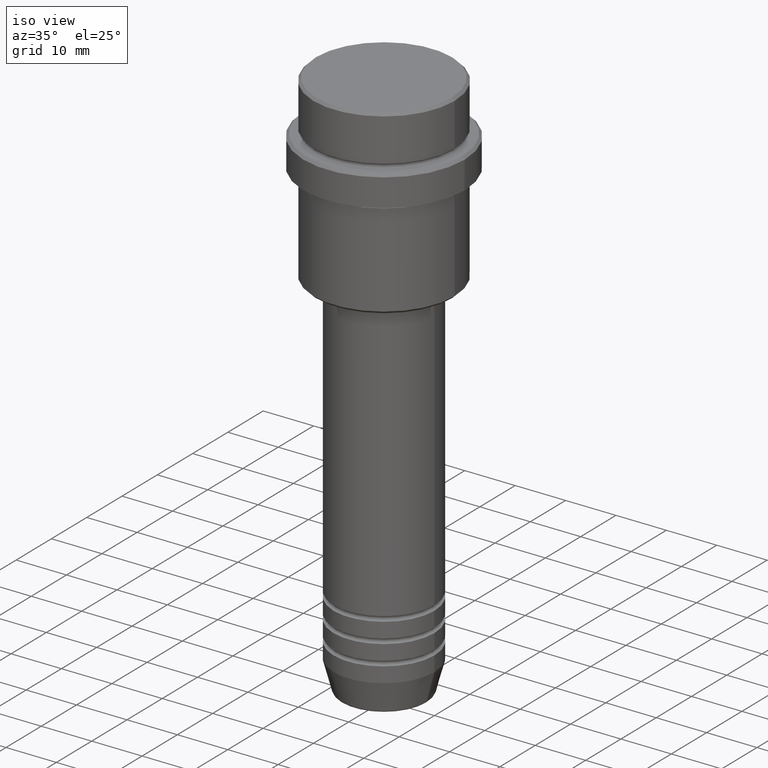
[diagram: clean part render]
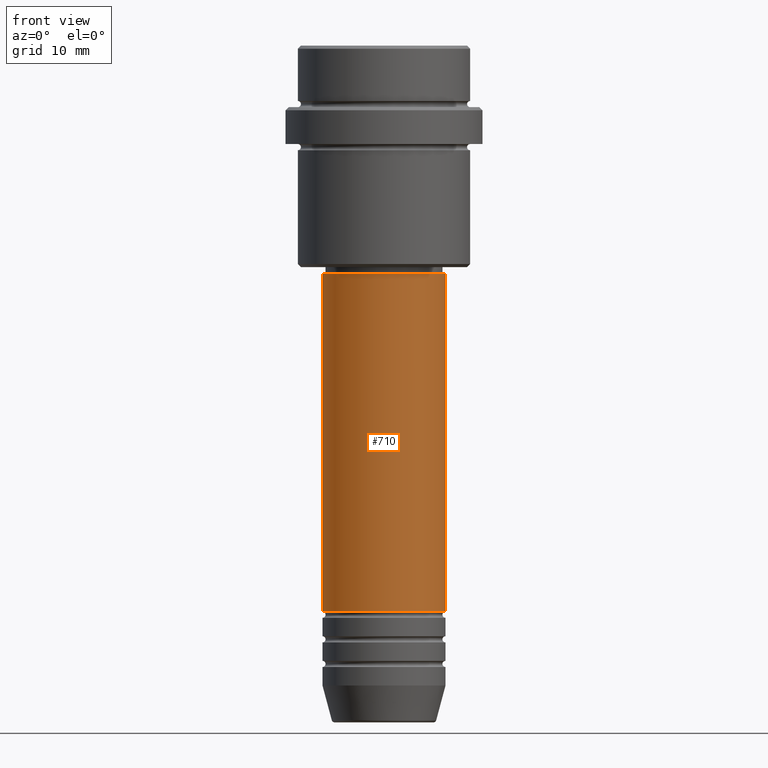
[diagram: tour spotlight — one face highlighted and labeled with its STEP entity id]
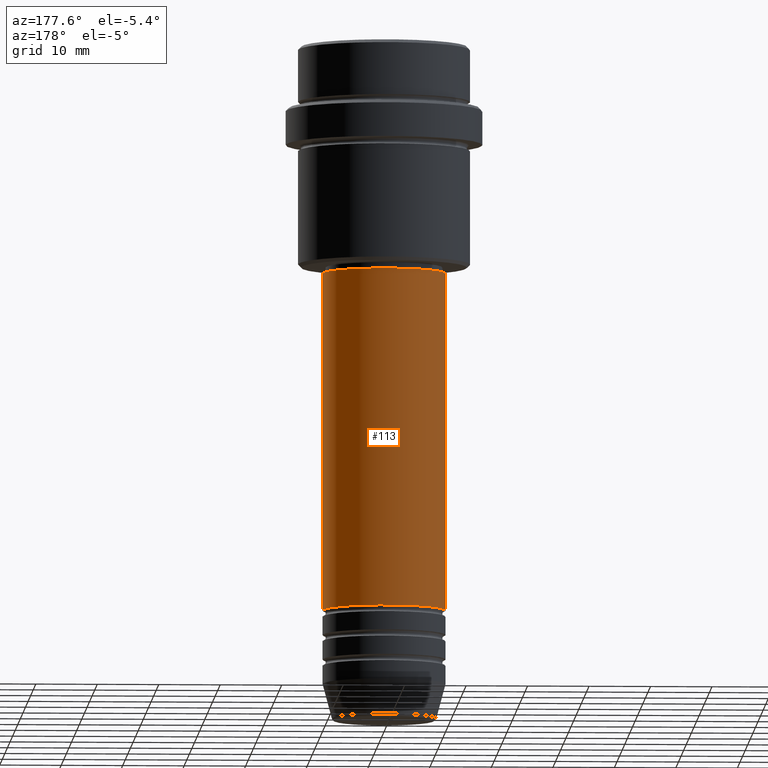
[diagram: tour spotlight — one face highlighted and labeled with its STEP entity id]
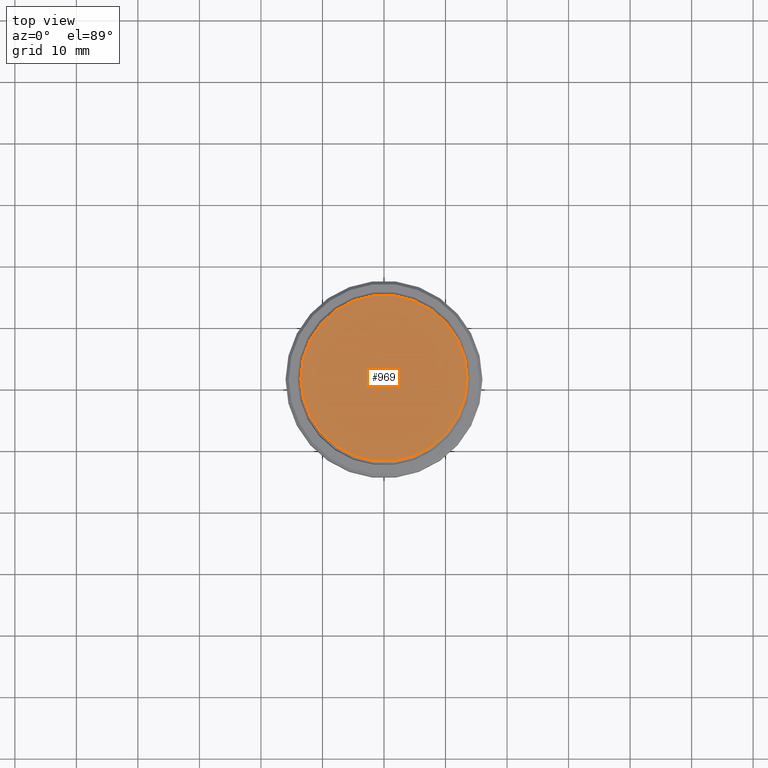
[diagram: tour spotlight — one face highlighted and labeled with its STEP entity id]
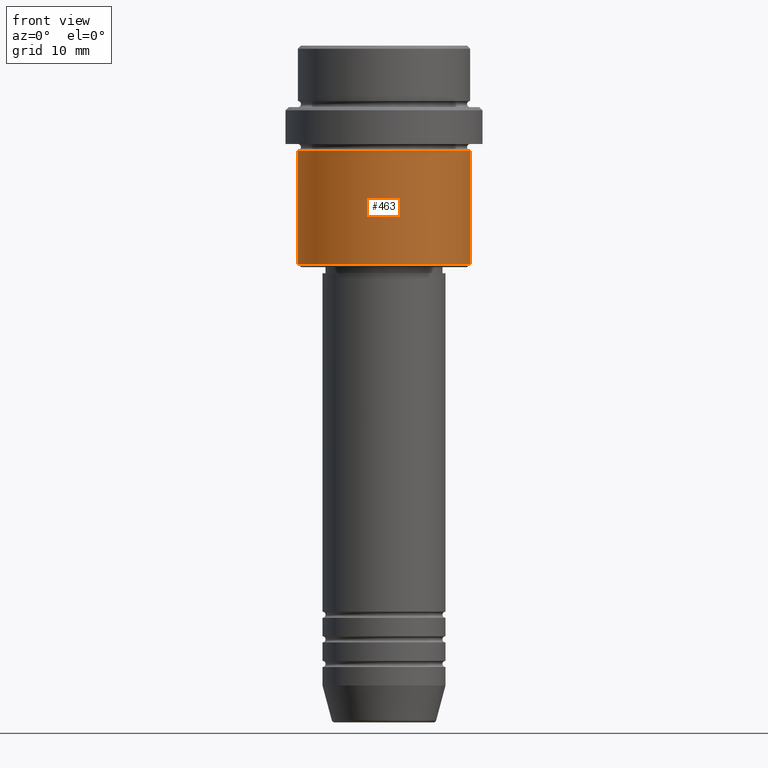
[diagram: tour spotlight — one face highlighted and labeled with its STEP entity id]
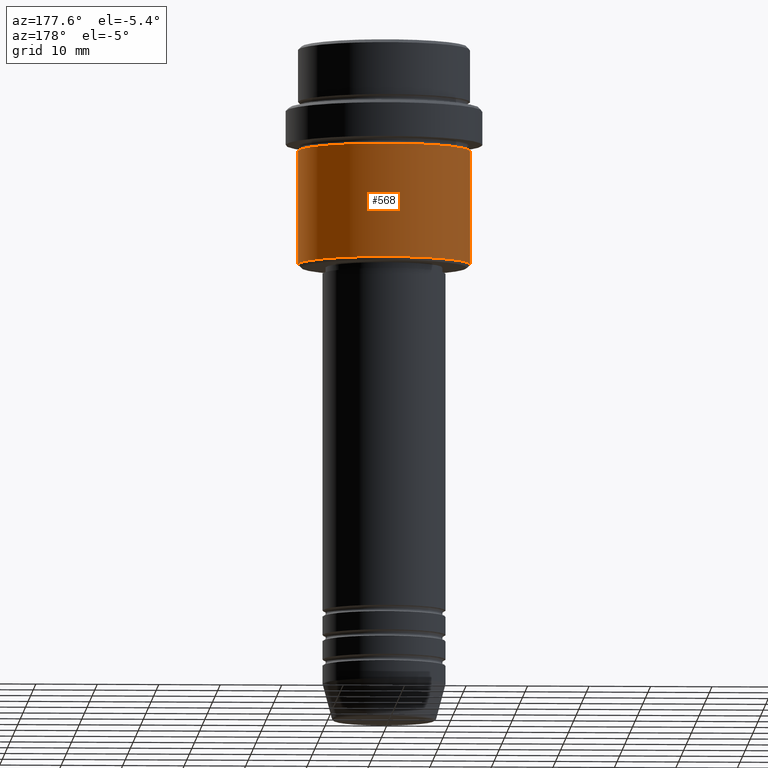
[diagram: tour spotlight — one face highlighted and labeled with its STEP entity id]
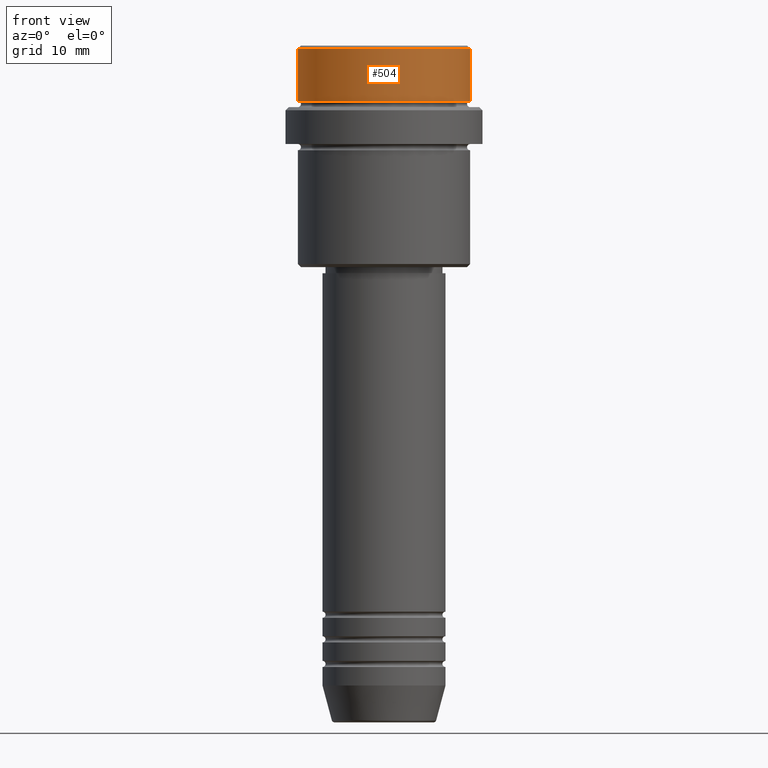
[diagram: tour spotlight — one face highlighted and labeled with its STEP entity id]
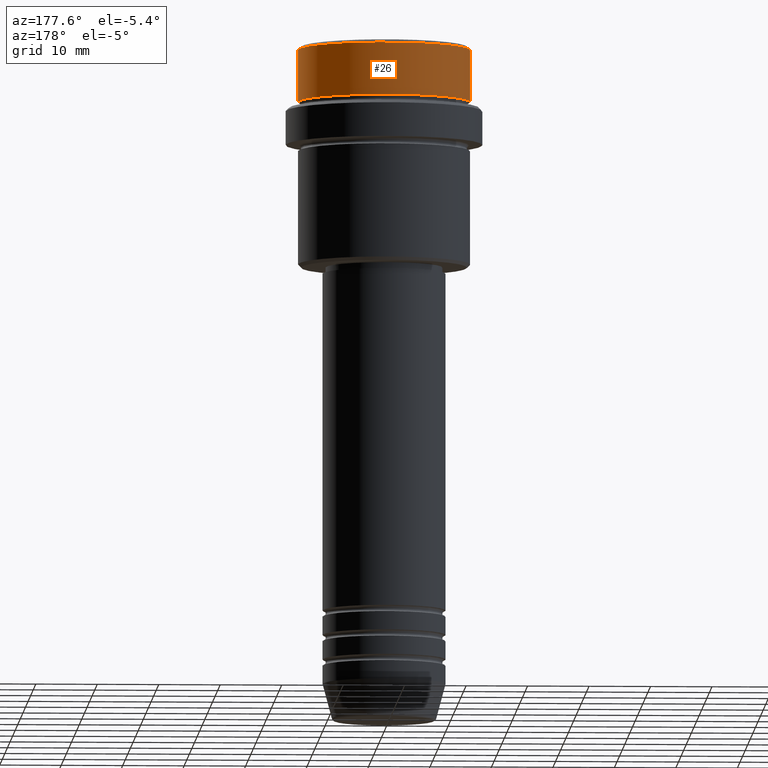
[diagram: tour spotlight — one face highlighted and labeled with its STEP entity id]
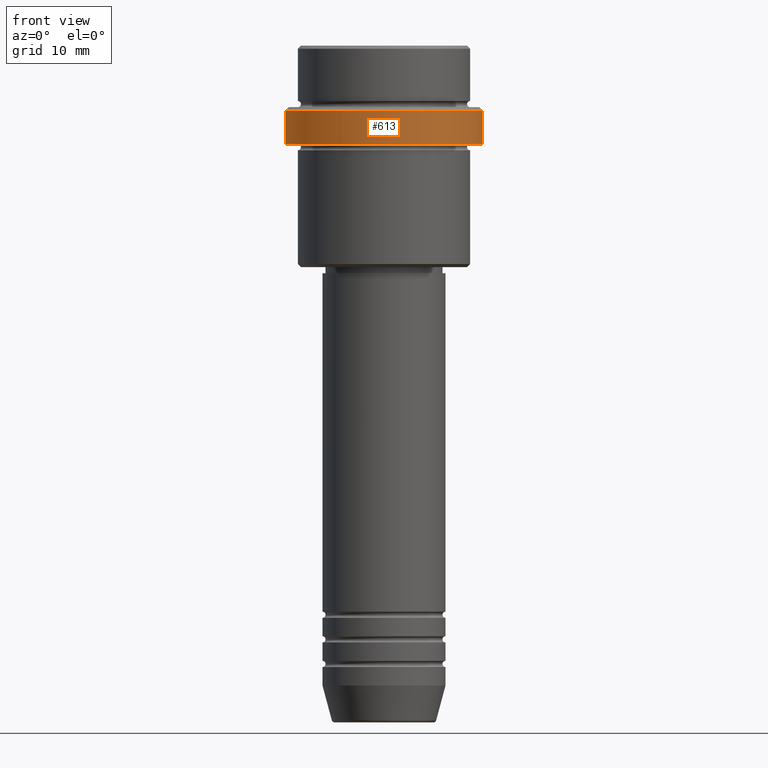
[diagram: tour spotlight — one face highlighted and labeled with its STEP entity id]
A machine part: a face-by-face anatomy tour. The part has 52 B-rep faces; the first image is the clean iso view, then the 8 largest visible faces are spotlighted one at a time (largest first), each with its STEP entity span.

Face 1 — front view, entity #710. In plain terms, the highlighted cylindrical surface (partial cylindrical patch) has radius 10 mm, axis along (-0, -0, 1).
Definition (entity closure, byte-faithful):
#45 = DIRECTION ( 'NONE',  ( 1.000000000000000000, 0.000000000000000000, 0.000000000000000000 ) ) ;
#54 = AXIS2_PLACEMENT_3D ( 'NONE', #1031, #467, #384 ) ;
#58 = VECTOR ( 'NONE', #427, 1000.000000000000000 ) ;
#231 = EDGE_LOOP ( 'NONE', ( #849, #626, #643, #864 ) ) ;
#296 = AXIS2_PLACEMENT_3D ( 'NONE', #1258, #500, #397 ) ;
#353 = DIRECTION ( 'NONE',  ( -0.000000000000000000, -0.000000000000000000, 1.000000000000000000 ) ) ;
#384 = DIRECTION ( 'NONE',  ( 1.000000000000000000, 0.000000000000000000, 0.000000000000000000 ) ) ;
#397 = DIRECTION ( 'NONE',  ( 1.000000000000000000, 0.000000000000000000, 0.000000000000000000 ) ) ;
#416 = EDGE_CURVE ( 'NONE', #798, #551, #471, .T. ) ;
#418 = CARTESIAN_POINT ( 'NONE',  ( -10.00000000000000000, 1.224646799147353256E-15, -91.99999999999988631 ) ) ;
#422 = CARTESIAN_POINT ( 'NONE',  ( 10.00000000000000000, 0.000000000000000000, -91.99999999999988631 ) ) ;
#427 = DIRECTION ( 'NONE',  ( -0.000000000000000000, -0.000000000000000000, 1.000000000000000000 ) ) ;
#446 = EDGE_CURVE ( 'NONE', #755, #678, #890, .T. ) ;
#467 = DIRECTION ( 'NONE',  ( -0.000000000000000000, -0.000000000000000000, 1.000000000000000000 ) ) ;
#471 = CIRCLE ( 'NONE', #54, 10.00000000000000000 ) ;
#500 = DIRECTION ( 'NONE',  ( -0.000000000000000000, -0.000000000000000000, 1.000000000000000000 ) ) ;
#519 = CYLINDRICAL_SURFACE ( 'NONE', #296, 10.00000000000000178 ) ;
#551 = VERTEX_POINT ( 'NONE', #422 ) ;
#553 = CARTESIAN_POINT ( 'NONE',  ( -10.00000000000000178, 1.224646799147353454E-15, -37.00000000000000000 ) ) ;
#626 = ORIENTED_EDGE ( 'NONE', *, *, #416, .T. ) ;
#643 = ORIENTED_EDGE ( 'NONE', *, *, #1125, .T. ) ;
#672 = CARTESIAN_POINT ( 'NONE',  ( -10.00000000000000178, 1.224646799147353454E-15, 0.000000000000000000 ) ) ;
#678 = VERTEX_POINT ( 'NONE', #1146 ) ;
#710 = ADVANCED_FACE ( 'NONE', ( #825 ), #519, .T. ) ;
#755 = VERTEX_POINT ( 'NONE', #553 ) ;
#798 = VERTEX_POINT ( 'NONE', #418 ) ;
#825 = FACE_OUTER_BOUND ( 'NONE', #231, .T. ) ;
#836 = AXIS2_PLACEMENT_3D ( 'NONE', #1036, #1130, #45 ) ;
#849 = ORIENTED_EDGE ( 'NONE', *, *, #1310, .F. ) ;
#864 = ORIENTED_EDGE ( 'NONE', *, *, #446, .F. ) ;
#890 = CIRCLE ( 'NONE', #836, 10.00000000000000178 ) ;
#897 = LINE ( 'NONE', #1322, #1188 ) ;
#1031 = CARTESIAN_POINT ( 'NONE',  ( 0.000000000000000000, 0.000000000000000000, -91.99999999999988631 ) ) ;
#1036 = CARTESIAN_POINT ( 'NONE',  ( 0.000000000000000000, 0.000000000000000000, -37.00000000000000000 ) ) ;
#1125 = EDGE_CURVE ( 'NONE', #551, #678, #897, .T. ) ;
#1130 = DIRECTION ( 'NONE',  ( -0.000000000000000000, -0.000000000000000000, 1.000000000000000000 ) ) ;
#1146 = CARTESIAN_POINT ( 'NONE',  ( 10.00000000000000178, 0.000000000000000000, -37.00000000000000000 ) ) ;
#1188 = VECTOR ( 'NONE', #353, 1000.000000000000000 ) ;
#1258 = CARTESIAN_POINT ( 'NONE',  ( 0.000000000000000000, 0.000000000000000000, 0.000000000000000000 ) ) ;
#1310 = EDGE_CURVE ( 'NONE', #798, #755, #1400, .T. ) ;
#1322 = CARTESIAN_POINT ( 'NONE',  ( 10.00000000000000178, 0.000000000000000000, 0.000000000000000000 ) ) ;
#1400 = LINE ( 'NONE', #672, #58 ) ;

Face 2 — auxiliary view, entity #113. In plain terms, the highlighted cylindrical surface (partial cylindrical patch) has radius 10 mm, axis along (-0, -0, 1).
Definition (entity closure, byte-faithful):
#58 = VECTOR ( 'NONE', #427, 1000.000000000000000 ) ;
#113 = ADVANCED_FACE ( 'NONE', ( #800 ), #1325, .T. ) ;
#118 = DIRECTION ( 'NONE',  ( 1.000000000000000000, 0.000000000000000000, 0.000000000000000000 ) ) ;
#142 = AXIS2_PLACEMENT_3D ( 'NONE', #445, #1014, #118 ) ;
#165 = DIRECTION ( 'NONE',  ( 1.000000000000000000, 0.000000000000000000, 0.000000000000000000 ) ) ;
#203 = ORIENTED_EDGE ( 'NONE', *, *, #1310, .T. ) ;
#220 = EDGE_CURVE ( 'NONE', #678, #755, #1041, .T. ) ;
#353 = DIRECTION ( 'NONE',  ( -0.000000000000000000, -0.000000000000000000, 1.000000000000000000 ) ) ;
#418 = CARTESIAN_POINT ( 'NONE',  ( -10.00000000000000000, 1.224646799147353256E-15, -91.99999999999988631 ) ) ;
#422 = CARTESIAN_POINT ( 'NONE',  ( 10.00000000000000000, 0.000000000000000000, -91.99999999999988631 ) ) ;
#427 = DIRECTION ( 'NONE',  ( -0.000000000000000000, -0.000000000000000000, 1.000000000000000000 ) ) ;
#445 = CARTESIAN_POINT ( 'NONE',  ( 0.000000000000000000, 0.000000000000000000, 0.000000000000000000 ) ) ;
#540 = AXIS2_PLACEMENT_3D ( 'NONE', #948, #1366, #165 ) ;
#551 = VERTEX_POINT ( 'NONE', #422 ) ;
#553 = CARTESIAN_POINT ( 'NONE',  ( -10.00000000000000178, 1.224646799147353454E-15, -37.00000000000000000 ) ) ;
#630 = EDGE_CURVE ( 'NONE', #551, #798, #956, .T. ) ;
#672 = CARTESIAN_POINT ( 'NONE',  ( -10.00000000000000178, 1.224646799147353454E-15, 0.000000000000000000 ) ) ;
#678 = VERTEX_POINT ( 'NONE', #1146 ) ;
#755 = VERTEX_POINT ( 'NONE', #553 ) ;
#798 = VERTEX_POINT ( 'NONE', #418 ) ;
#800 = FACE_OUTER_BOUND ( 'NONE', #943, .T. ) ;
#817 = ORIENTED_EDGE ( 'NONE', *, *, #1125, .F. ) ;
#897 = LINE ( 'NONE', #1322, #1188 ) ;
#943 = EDGE_LOOP ( 'NONE', ( #1287, #203, #1035, #817 ) ) ;
#948 = CARTESIAN_POINT ( 'NONE',  ( 0.000000000000000000, 0.000000000000000000, -91.99999999999988631 ) ) ;
#956 = CIRCLE ( 'NONE', #540, 10.00000000000000000 ) ;
#994 = DIRECTION ( 'NONE',  ( -0.000000000000000000, -0.000000000000000000, 1.000000000000000000 ) ) ;
#1014 = DIRECTION ( 'NONE',  ( -0.000000000000000000, -0.000000000000000000, 1.000000000000000000 ) ) ;
#1035 = ORIENTED_EDGE ( 'NONE', *, *, #220, .F. ) ;
#1041 = CIRCLE ( 'NONE', #1292, 10.00000000000000178 ) ;
#1096 = CARTESIAN_POINT ( 'NONE',  ( 0.000000000000000000, 0.000000000000000000, -37.00000000000000000 ) ) ;
#1125 = EDGE_CURVE ( 'NONE', #551, #678, #897, .T. ) ;
#1146 = CARTESIAN_POINT ( 'NONE',  ( 10.00000000000000178, 0.000000000000000000, -37.00000000000000000 ) ) ;
#1188 = VECTOR ( 'NONE', #353, 1000.000000000000000 ) ;
#1287 = ORIENTED_EDGE ( 'NONE', *, *, #630, .T. ) ;
#1292 = AXIS2_PLACEMENT_3D ( 'NONE', #1096, #994, #1416 ) ;
#1310 = EDGE_CURVE ( 'NONE', #798, #755, #1400, .T. ) ;
#1322 = CARTESIAN_POINT ( 'NONE',  ( 10.00000000000000178, 0.000000000000000000, 0.000000000000000000 ) ) ;
#1325 = CYLINDRICAL_SURFACE ( 'NONE', #142, 10.00000000000000178 ) ;
#1366 = DIRECTION ( 'NONE',  ( -0.000000000000000000, -0.000000000000000000, 1.000000000000000000 ) ) ;
#1400 = LINE ( 'NONE', #672, #58 ) ;
#1416 = DIRECTION ( 'NONE',  ( 1.000000000000000000, 0.000000000000000000, 0.000000000000000000 ) ) ;

Face 3 — top view, entity #969. In plain terms, the highlighted planar face has unit normal (0, -0, 1).
Definition (entity closure, byte-faithful):
#55 = CARTESIAN_POINT ( 'NONE',  ( 0.000000000000000000, 0.000000000000000000, 0.000000000000000000 ) ) ;
#84 = DIRECTION ( 'NONE',  ( -0.000000000000000000, -0.000000000000000000, 1.000000000000000000 ) ) ;
#95 = VERTEX_POINT ( 'NONE', #899 ) ;
#157 = DIRECTION ( 'NONE',  ( -0.000000000000000000, -0.000000000000000000, 1.000000000000000000 ) ) ;
#172 = CARTESIAN_POINT ( 'NONE',  ( 0.000000000000000000, 0.000000000000000000, 0.000000000000000000 ) ) ;
#189 = FACE_OUTER_BOUND ( 'NONE', #1308, .T. ) ;
#211 = CARTESIAN_POINT ( 'NONE',  ( 13.49999999999999822, 1.683889348827610456E-15, 0.000000000000000000 ) ) ;
#247 = AXIS2_PLACEMENT_3D ( 'NONE', #172, #945, #970 ) ;
#278 = DIRECTION ( 'NONE',  ( 1.000000000000000000, 0.000000000000000000, 0.000000000000000000 ) ) ;
#368 = EDGE_CURVE ( 'NONE', #1304, #95, #751, .T. ) ;
#381 = AXIS2_PLACEMENT_3D ( 'NONE', #744, #84, #1395 ) ;
#538 = AXIS2_PLACEMENT_3D ( 'NONE', #55, #157, #278 ) ;
#548 = EDGE_CURVE ( 'NONE', #95, #1304, #868, .T. ) ;
#744 = CARTESIAN_POINT ( 'NONE',  ( 0.000000000000000000, 0.000000000000000000, 0.000000000000000000 ) ) ;
#751 = CIRCLE ( 'NONE', #538, 13.49999999999999822 ) ;
#801 = ORIENTED_EDGE ( 'NONE', *, *, #368, .T. ) ;
#828 = PLANE ( 'NONE',  #247 ) ;
#868 = CIRCLE ( 'NONE', #381, 13.49999999999999822 ) ;
#899 = CARTESIAN_POINT ( 'NONE',  ( -13.49999999999999822, 0.000000000000000000, 0.000000000000000000 ) ) ;
#945 = DIRECTION ( 'NONE',  ( 0.000000000000000000, -0.000000000000000000, 1.000000000000000000 ) ) ;
#957 = ORIENTED_EDGE ( 'NONE', *, *, #548, .T. ) ;
#969 = ADVANCED_FACE ( 'NONE', ( #189 ), #828, .T. ) ;
#970 = DIRECTION ( 'NONE',  ( 1.000000000000000000, 0.000000000000000000, 0.000000000000000000 ) ) ;
#1304 = VERTEX_POINT ( 'NONE', #211 ) ;
#1308 = EDGE_LOOP ( 'NONE', ( #957, #801 ) ) ;
#1395 = DIRECTION ( 'NONE',  ( 1.000000000000000000, 0.000000000000000000, 0.000000000000000000 ) ) ;

Face 4 — front view, entity #463. In plain terms, the highlighted cylindrical surface (partial cylindrical patch) has radius 14 mm, axis along (-0, -0, 1).
Definition (entity closure, byte-faithful):
#11 = CARTESIAN_POINT ( 'NONE',  ( -13.99999999999999467, 1.714505518806294046E-15, -35.49999999999997158 ) ) ;
#13 = AXIS2_PLACEMENT_3D ( 'NONE', #505, #837, #617 ) ;
#25 = CARTESIAN_POINT ( 'NONE',  ( 13.99999999999999467, 0.000000000000000000, 0.000000000000000000 ) ) ;
#59 = CARTESIAN_POINT ( 'NONE',  ( 13.99999999999999112, 0.000000000000000000, -17.00000000000001066 ) ) ;
#146 = FACE_OUTER_BOUND ( 'NONE', #1367, .T. ) ;
#148 = CIRCLE ( 'NONE', #934, 13.99999999999999112 ) ;
#154 = VERTEX_POINT ( 'NONE', #11 ) ;
#284 = DIRECTION ( 'NONE',  ( -0.000000000000000000, -0.000000000000000000, 1.000000000000000000 ) ) ;
#432 = EDGE_CURVE ( 'NONE', #528, #674, #827, .T. ) ;
#459 = DIRECTION ( 'NONE',  ( -0.000000000000000000, -0.000000000000000000, 1.000000000000000000 ) ) ;
#460 = ORIENTED_EDGE ( 'NONE', *, *, #1106, .F. ) ;
#463 = ADVANCED_FACE ( 'NONE', ( #146 ), #588, .T. ) ;
#486 = VERTEX_POINT ( 'NONE', #1300 ) ;
#487 = DIRECTION ( 'NONE',  ( 1.000000000000000000, 0.000000000000000000, 0.000000000000000000 ) ) ;
#505 = CARTESIAN_POINT ( 'NONE',  ( 0.000000000000000000, 0.000000000000000000, -35.49999999999997158 ) ) ;
#528 = VERTEX_POINT ( 'NONE', #646 ) ;
#554 = EDGE_CURVE ( 'NONE', #154, #486, #1007, .T. ) ;
#571 = ORIENTED_EDGE ( 'NONE', *, *, #676, .T. ) ;
#588 = CYLINDRICAL_SURFACE ( 'NONE', #1269, 13.99999999999999467 ) ;
#617 = DIRECTION ( 'NONE',  ( -1.000000000000000000, 0.000000000000000000, 0.000000000000000000 ) ) ;
#646 = CARTESIAN_POINT ( 'NONE',  ( 13.99999999999999467, 0.000000000000000000, -35.49999999999997158 ) ) ;
#674 = VERTEX_POINT ( 'NONE', #59 ) ;
#676 = EDGE_CURVE ( 'NONE', #154, #528, #985, .T. ) ;
#705 = DIRECTION ( 'NONE',  ( -0.000000000000000000, -0.000000000000000000, 1.000000000000000000 ) ) ;
#711 = CARTESIAN_POINT ( 'NONE',  ( -13.99999999999999467, 1.714505518806294046E-15, 0.000000000000000000 ) ) ;
#713 = ORIENTED_EDGE ( 'NONE', *, *, #554, .F. ) ;
#827 = LINE ( 'NONE', #25, #931 ) ;
#837 = DIRECTION ( 'NONE',  ( -0.000000000000000000, -0.000000000000000000, 1.000000000000000000 ) ) ;
#920 = CARTESIAN_POINT ( 'NONE',  ( 0.000000000000000000, 0.000000000000000000, 0.000000000000000000 ) ) ;
#931 = VECTOR ( 'NONE', #284, 1000.000000000000000 ) ;
#934 = AXIS2_PLACEMENT_3D ( 'NONE', #1004, #459, #991 ) ;
#954 = VECTOR ( 'NONE', #705, 1000.000000000000000 ) ;
#985 = CIRCLE ( 'NONE', #13, 13.99999999999999467 ) ;
#991 = DIRECTION ( 'NONE',  ( 1.000000000000000000, 0.000000000000000000, 0.000000000000000000 ) ) ;
#1004 = CARTESIAN_POINT ( 'NONE',  ( 0.000000000000000000, 0.000000000000000000, -17.00000000000001066 ) ) ;
#1007 = LINE ( 'NONE', #711, #954 ) ;
#1106 = EDGE_CURVE ( 'NONE', #486, #674, #148, .T. ) ;
#1221 = ORIENTED_EDGE ( 'NONE', *, *, #432, .T. ) ;
#1269 = AXIS2_PLACEMENT_3D ( 'NONE', #920, #1344, #487 ) ;
#1300 = CARTESIAN_POINT ( 'NONE',  ( -13.99999999999999112, 1.714505518806293849E-15, -17.00000000000001066 ) ) ;
#1344 = DIRECTION ( 'NONE',  ( -0.000000000000000000, -0.000000000000000000, 1.000000000000000000 ) ) ;
#1367 = EDGE_LOOP ( 'NONE', ( #713, #571, #1221, #460 ) ) ;

Face 5 — auxiliary view, entity #568. In plain terms, the highlighted cylindrical surface (partial cylindrical patch) has radius 14 mm, axis along (-0, -0, 1).
Definition (entity closure, byte-faithful):
#11 = CARTESIAN_POINT ( 'NONE',  ( -13.99999999999999467, 1.714505518806294046E-15, -35.49999999999997158 ) ) ;
#25 = CARTESIAN_POINT ( 'NONE',  ( 13.99999999999999467, 0.000000000000000000, 0.000000000000000000 ) ) ;
#59 = CARTESIAN_POINT ( 'NONE',  ( 13.99999999999999112, 0.000000000000000000, -17.00000000000001066 ) ) ;
#71 = EDGE_CURVE ( 'NONE', #674, #486, #748, .T. ) ;
#136 = DIRECTION ( 'NONE',  ( 1.000000000000000000, 0.000000000000000000, 0.000000000000000000 ) ) ;
#140 = EDGE_CURVE ( 'NONE', #528, #154, #263, .T. ) ;
#154 = VERTEX_POINT ( 'NONE', #11 ) ;
#263 = CIRCLE ( 'NONE', #633, 13.99999999999999467 ) ;
#284 = DIRECTION ( 'NONE',  ( -0.000000000000000000, -0.000000000000000000, 1.000000000000000000 ) ) ;
#301 = EDGE_LOOP ( 'NONE', ( #923, #320, #1297, #1289 ) ) ;
#320 = ORIENTED_EDGE ( 'NONE', *, *, #554, .T. ) ;
#373 = FACE_OUTER_BOUND ( 'NONE', #301, .T. ) ;
#432 = EDGE_CURVE ( 'NONE', #528, #674, #827, .T. ) ;
#473 = DIRECTION ( 'NONE',  ( -0.000000000000000000, -0.000000000000000000, 1.000000000000000000 ) ) ;
#486 = VERTEX_POINT ( 'NONE', #1300 ) ;
#528 = VERTEX_POINT ( 'NONE', #646 ) ;
#554 = EDGE_CURVE ( 'NONE', #154, #486, #1007, .T. ) ;
#568 = ADVANCED_FACE ( 'NONE', ( #373 ), #796, .T. ) ;
#570 = CARTESIAN_POINT ( 'NONE',  ( 0.000000000000000000, 0.000000000000000000, 0.000000000000000000 ) ) ;
#633 = AXIS2_PLACEMENT_3D ( 'NONE', #1236, #473, #998 ) ;
#635 = AXIS2_PLACEMENT_3D ( 'NONE', #570, #906, #1331 ) ;
#646 = CARTESIAN_POINT ( 'NONE',  ( 13.99999999999999467, 0.000000000000000000, -35.49999999999997158 ) ) ;
#674 = VERTEX_POINT ( 'NONE', #59 ) ;
#705 = DIRECTION ( 'NONE',  ( -0.000000000000000000, -0.000000000000000000, 1.000000000000000000 ) ) ;
#711 = CARTESIAN_POINT ( 'NONE',  ( -13.99999999999999467, 1.714505518806294046E-15, 0.000000000000000000 ) ) ;
#748 = CIRCLE ( 'NONE', #887, 13.99999999999999112 ) ;
#796 = CYLINDRICAL_SURFACE ( 'NONE', #635, 13.99999999999999467 ) ;
#827 = LINE ( 'NONE', #25, #931 ) ;
#887 = AXIS2_PLACEMENT_3D ( 'NONE', #1117, #1230, #136 ) ;
#906 = DIRECTION ( 'NONE',  ( -0.000000000000000000, -0.000000000000000000, 1.000000000000000000 ) ) ;
#923 = ORIENTED_EDGE ( 'NONE', *, *, #140, .T. ) ;
#931 = VECTOR ( 'NONE', #284, 1000.000000000000000 ) ;
#954 = VECTOR ( 'NONE', #705, 1000.000000000000000 ) ;
#998 = DIRECTION ( 'NONE',  ( -1.000000000000000000, 0.000000000000000000, 0.000000000000000000 ) ) ;
#1007 = LINE ( 'NONE', #711, #954 ) ;
#1117 = CARTESIAN_POINT ( 'NONE',  ( 0.000000000000000000, 0.000000000000000000, -17.00000000000001066 ) ) ;
#1230 = DIRECTION ( 'NONE',  ( -0.000000000000000000, -0.000000000000000000, 1.000000000000000000 ) ) ;
#1236 = CARTESIAN_POINT ( 'NONE',  ( 0.000000000000000000, 0.000000000000000000, -35.49999999999997158 ) ) ;
#1289 = ORIENTED_EDGE ( 'NONE', *, *, #432, .F. ) ;
#1297 = ORIENTED_EDGE ( 'NONE', *, *, #71, .F. ) ;
#1300 = CARTESIAN_POINT ( 'NONE',  ( -13.99999999999999112, 1.714505518806293849E-15, -17.00000000000001066 ) ) ;
#1331 = DIRECTION ( 'NONE',  ( 1.000000000000000000, 0.000000000000000000, 0.000000000000000000 ) ) ;

Face 6 — front view, entity #504. In plain terms, the highlighted cylindrical surface (partial cylindrical patch) has radius 14 mm, axis along (-0, -0, 1).
Definition (entity closure, byte-faithful):
#68 = CARTESIAN_POINT ( 'NONE',  ( 0.000000000000000000, 0.000000000000000000, 0.000000000000000000 ) ) ;
#73 = DIRECTION ( 'NONE',  ( -0.000000000000000000, -0.000000000000000000, 1.000000000000000000 ) ) ;
#150 = ORIENTED_EDGE ( 'NONE', *, *, #804, .T. ) ;
#155 = DIRECTION ( 'NONE',  ( 1.000000000000000000, 0.000000000000000000, 0.000000000000000000 ) ) ;
#170 = EDGE_CURVE ( 'NONE', #357, #1220, #1348, .T. ) ;
#226 = CARTESIAN_POINT ( 'NONE',  ( 13.99999999999999467, 0.000000000000000000, -0.5000000000000038858 ) ) ;
#313 = DIRECTION ( 'NONE',  ( -0.000000000000000000, -0.000000000000000000, 1.000000000000000000 ) ) ;
#348 = EDGE_CURVE ( 'NONE', #357, #1253, #1382, .T. ) ;
#357 = VERTEX_POINT ( 'NONE', #1247 ) ;
#475 = AXIS2_PLACEMENT_3D ( 'NONE', #696, #1242, #155 ) ;
#504 = ADVANCED_FACE ( 'NONE', ( #1058 ), #750, .T. ) ;
#525 = LINE ( 'NONE', #853, #609 ) ;
#544 = ORIENTED_EDGE ( 'NONE', *, *, #348, .T. ) ;
#609 = VECTOR ( 'NONE', #313, 1000.000000000000000 ) ;
#616 = CARTESIAN_POINT ( 'NONE',  ( -13.99999999999999467, 1.714505518806294046E-15, 0.000000000000000000 ) ) ;
#638 = CIRCLE ( 'NONE', #475, 13.99999999999999467 ) ;
#696 = CARTESIAN_POINT ( 'NONE',  ( 0.000000000000000000, 0.000000000000000000, -0.5000000000000038858 ) ) ;
#750 = CYLINDRICAL_SURFACE ( 'NONE', #1067, 13.99999999999999467 ) ;
#804 = EDGE_CURVE ( 'NONE', #1253, #1175, #525, .T. ) ;
#842 = CARTESIAN_POINT ( 'NONE',  ( 13.99999999999999112, 0.000000000000000000, -8.999999999999998224 ) ) ;
#853 = CARTESIAN_POINT ( 'NONE',  ( 13.99999999999999467, 0.000000000000000000, 0.000000000000000000 ) ) ;
#862 = ORIENTED_EDGE ( 'NONE', *, *, #170, .F. ) ;
#940 = CARTESIAN_POINT ( 'NONE',  ( 0.000000000000000000, 0.000000000000000000, -8.999999999999998224 ) ) ;
#1018 = CARTESIAN_POINT ( 'NONE',  ( -13.99999999999999467, 1.714505518806294046E-15, -0.5000000000000038858 ) ) ;
#1034 = DIRECTION ( 'NONE',  ( -0.000000000000000000, -0.000000000000000000, 1.000000000000000000 ) ) ;
#1058 = FACE_OUTER_BOUND ( 'NONE', #1129, .T. ) ;
#1067 = AXIS2_PLACEMENT_3D ( 'NONE', #68, #73, #1378 ) ;
#1123 = ORIENTED_EDGE ( 'NONE', *, *, #1212, .T. ) ;
#1129 = EDGE_LOOP ( 'NONE', ( #862, #544, #150, #1123 ) ) ;
#1175 = VERTEX_POINT ( 'NONE', #226 ) ;
#1212 = EDGE_CURVE ( 'NONE', #1175, #1220, #638, .T. ) ;
#1220 = VERTEX_POINT ( 'NONE', #1018 ) ;
#1242 = DIRECTION ( 'NONE',  ( 0.000000000000000000, 0.000000000000000000, -1.000000000000000000 ) ) ;
#1247 = CARTESIAN_POINT ( 'NONE',  ( -13.99999999999999112, 1.714505518806293849E-15, -8.999999999999998224 ) ) ;
#1253 = VERTEX_POINT ( 'NONE', #842 ) ;
#1312 = AXIS2_PLACEMENT_3D ( 'NONE', #940, #1347, #1363 ) ;
#1332 = VECTOR ( 'NONE', #1034, 1000.000000000000000 ) ;
#1347 = DIRECTION ( 'NONE',  ( -0.000000000000000000, -0.000000000000000000, 1.000000000000000000 ) ) ;
#1348 = LINE ( 'NONE', #616, #1332 ) ;
#1363 = DIRECTION ( 'NONE',  ( 1.000000000000000000, 0.000000000000000000, 0.000000000000000000 ) ) ;
#1378 = DIRECTION ( 'NONE',  ( 1.000000000000000000, 0.000000000000000000, 0.000000000000000000 ) ) ;
#1382 = CIRCLE ( 'NONE', #1312, 13.99999999999999112 ) ;

Face 7 — auxiliary view, entity #26. In plain terms, the highlighted cylindrical surface (partial cylindrical patch) has radius 14 mm, axis along (-0, -0, 1).
Definition (entity closure, byte-faithful):
#26 = ADVANCED_FACE ( 'NONE', ( #743 ), #210, .T. ) ;
#60 = DIRECTION ( 'NONE',  ( 1.000000000000000000, 0.000000000000000000, 0.000000000000000000 ) ) ;
#117 = EDGE_CURVE ( 'NONE', #1220, #1175, #792, .T. ) ;
#132 = CARTESIAN_POINT ( 'NONE',  ( 0.000000000000000000, 0.000000000000000000, -0.5000000000000038858 ) ) ;
#170 = EDGE_CURVE ( 'NONE', #357, #1220, #1348, .T. ) ;
#209 = ORIENTED_EDGE ( 'NONE', *, *, #117, .T. ) ;
#210 = CYLINDRICAL_SURFACE ( 'NONE', #1153, 13.99999999999999467 ) ;
#226 = CARTESIAN_POINT ( 'NONE',  ( 13.99999999999999467, 0.000000000000000000, -0.5000000000000038858 ) ) ;
#313 = DIRECTION ( 'NONE',  ( -0.000000000000000000, -0.000000000000000000, 1.000000000000000000 ) ) ;
#322 = AXIS2_PLACEMENT_3D ( 'NONE', #951, #330, #60 ) ;
#327 = DIRECTION ( 'NONE',  ( -0.000000000000000000, -0.000000000000000000, 1.000000000000000000 ) ) ;
#330 = DIRECTION ( 'NONE',  ( -0.000000000000000000, -0.000000000000000000, 1.000000000000000000 ) ) ;
#357 = VERTEX_POINT ( 'NONE', #1247 ) ;
#374 = ORIENTED_EDGE ( 'NONE', *, *, #488, .T. ) ;
#403 = EDGE_LOOP ( 'NONE', ( #374, #1165, #209, #699 ) ) ;
#488 = EDGE_CURVE ( 'NONE', #1253, #357, #793, .T. ) ;
#525 = LINE ( 'NONE', #853, #609 ) ;
#609 = VECTOR ( 'NONE', #313, 1000.000000000000000 ) ;
#616 = CARTESIAN_POINT ( 'NONE',  ( -13.99999999999999467, 1.714505518806294046E-15, 0.000000000000000000 ) ) ;
#699 = ORIENTED_EDGE ( 'NONE', *, *, #804, .F. ) ;
#743 = FACE_OUTER_BOUND ( 'NONE', #403, .T. ) ;
#792 = CIRCLE ( 'NONE', #1403, 13.99999999999999467 ) ;
#793 = CIRCLE ( 'NONE', #322, 13.99999999999999112 ) ;
#804 = EDGE_CURVE ( 'NONE', #1253, #1175, #525, .T. ) ;
#842 = CARTESIAN_POINT ( 'NONE',  ( 13.99999999999999112, 0.000000000000000000, -8.999999999999998224 ) ) ;
#853 = CARTESIAN_POINT ( 'NONE',  ( 13.99999999999999467, 0.000000000000000000, 0.000000000000000000 ) ) ;
#951 = CARTESIAN_POINT ( 'NONE',  ( 0.000000000000000000, 0.000000000000000000, -8.999999999999998224 ) ) ;
#1018 = CARTESIAN_POINT ( 'NONE',  ( -13.99999999999999467, 1.714505518806294046E-15, -0.5000000000000038858 ) ) ;
#1034 = DIRECTION ( 'NONE',  ( -0.000000000000000000, -0.000000000000000000, 1.000000000000000000 ) ) ;
#1121 = DIRECTION ( 'NONE',  ( 1.000000000000000000, 0.000000000000000000, 0.000000000000000000 ) ) ;
#1153 = AXIS2_PLACEMENT_3D ( 'NONE', #1176, #327, #1393 ) ;
#1165 = ORIENTED_EDGE ( 'NONE', *, *, #170, .T. ) ;
#1175 = VERTEX_POINT ( 'NONE', #226 ) ;
#1176 = CARTESIAN_POINT ( 'NONE',  ( 0.000000000000000000, 0.000000000000000000, 0.000000000000000000 ) ) ;
#1220 = VERTEX_POINT ( 'NONE', #1018 ) ;
#1247 = CARTESIAN_POINT ( 'NONE',  ( -13.99999999999999112, 1.714505518806293849E-15, -8.999999999999998224 ) ) ;
#1253 = VERTEX_POINT ( 'NONE', #842 ) ;
#1329 = DIRECTION ( 'NONE',  ( 0.000000000000000000, 0.000000000000000000, -1.000000000000000000 ) ) ;
#1332 = VECTOR ( 'NONE', #1034, 1000.000000000000000 ) ;
#1348 = LINE ( 'NONE', #616, #1332 ) ;
#1393 = DIRECTION ( 'NONE',  ( 1.000000000000000000, 0.000000000000000000, 0.000000000000000000 ) ) ;
#1403 = AXIS2_PLACEMENT_3D ( 'NONE', #132, #1329, #1121 ) ;

Face 8 — front view, entity #613. In plain terms, the highlighted cylindrical surface (partial cylindrical patch) has radius 16 mm, axis along (-0, -0, 1).
Definition (entity closure, byte-faithful):
#18 = DIRECTION ( 'NONE',  ( -0.000000000000000000, -0.000000000000000000, 1.000000000000000000 ) ) ;
#28 = DIRECTION ( 'NONE',  ( -0.000000000000000000, -0.000000000000000000, 1.000000000000000000 ) ) ;
#125 = EDGE_CURVE ( 'NONE', #888, #880, #574, .T. ) ;
#137 = CYLINDRICAL_SURFACE ( 'NONE', #770, 15.99999999999999289 ) ;
#145 = ORIENTED_EDGE ( 'NONE', *, *, #510, .T. ) ;
#201 = DIRECTION ( 'NONE',  ( 1.000000000000000000, 0.000000000000000000, 0.000000000000000000 ) ) ;
#347 = CARTESIAN_POINT ( 'NONE',  ( -15.99999999999999289, 1.959434878635764343E-15, -10.50000000000000888 ) ) ;
#376 = CARTESIAN_POINT ( 'NONE',  ( 15.99999999999999289, 0.000000000000000000, -10.50000000000000888 ) ) ;
#379 = ORIENTED_EDGE ( 'NONE', *, *, #524, .T. ) ;
#407 = CARTESIAN_POINT ( 'NONE',  ( 0.000000000000000000, 0.000000000000000000, -10.50000000000000888 ) ) ;
#435 = ORIENTED_EDGE ( 'NONE', *, *, #1396, .T. ) ;
#466 = VERTEX_POINT ( 'NONE', #376 ) ;
#493 = VECTOR ( 'NONE', #1281, 1000.000000000000000 ) ;
#502 = LINE ( 'NONE', #958, #493 ) ;
#510 = EDGE_CURVE ( 'NONE', #466, #880, #581, .T. ) ;
#524 = EDGE_CURVE ( 'NONE', #1011, #466, #502, .T. ) ;
#527 = CARTESIAN_POINT ( 'NONE',  ( 0.000000000000000000, 0.000000000000000000, 0.000000000000000000 ) ) ;
#574 = LINE ( 'NONE', #780, #1380 ) ;
#581 = CIRCLE ( 'NONE', #768, 15.99999999999999289 ) ;
#613 = ADVANCED_FACE ( 'NONE', ( #692 ), #137, .T. ) ;
#692 = FACE_OUTER_BOUND ( 'NONE', #1341, .T. ) ;
#719 = ORIENTED_EDGE ( 'NONE', *, *, #125, .F. ) ;
#768 = AXIS2_PLACEMENT_3D ( 'NONE', #407, #843, #1050 ) ;
#770 = AXIS2_PLACEMENT_3D ( 'NONE', #527, #1392, #201 ) ;
#780 = CARTESIAN_POINT ( 'NONE',  ( -15.99999999999999289, 1.959434878635764343E-15, 0.000000000000000000 ) ) ;
#788 = DIRECTION ( 'NONE',  ( 1.000000000000000000, 0.000000000000000000, 0.000000000000000000 ) ) ;
#819 = CIRCLE ( 'NONE', #1074, 15.99999999999999289 ) ;
#843 = DIRECTION ( 'NONE',  ( 0.000000000000000000, 0.000000000000000000, -1.000000000000000000 ) ) ;
#880 = VERTEX_POINT ( 'NONE', #347 ) ;
#881 = CARTESIAN_POINT ( 'NONE',  ( 15.99999999999999289, 0.000000000000000000, -16.00000000000000000 ) ) ;
#888 = VERTEX_POINT ( 'NONE', #1090 ) ;
#958 = CARTESIAN_POINT ( 'NONE',  ( 15.99999999999999289, 0.000000000000000000, 0.000000000000000000 ) ) ;
#1011 = VERTEX_POINT ( 'NONE', #881 ) ;
#1050 = DIRECTION ( 'NONE',  ( 1.000000000000000000, 0.000000000000000000, 0.000000000000000000 ) ) ;
#1074 = AXIS2_PLACEMENT_3D ( 'NONE', #1415, #18, #788 ) ;
#1090 = CARTESIAN_POINT ( 'NONE',  ( -15.99999999999999289, 1.959434878635764343E-15, -16.00000000000000000 ) ) ;
#1281 = DIRECTION ( 'NONE',  ( -0.000000000000000000, -0.000000000000000000, 1.000000000000000000 ) ) ;
#1341 = EDGE_LOOP ( 'NONE', ( #719, #435, #379, #145 ) ) ;
#1380 = VECTOR ( 'NONE', #28, 1000.000000000000000 ) ;
#1392 = DIRECTION ( 'NONE',  ( -0.000000000000000000, -0.000000000000000000, 1.000000000000000000 ) ) ;
#1396 = EDGE_CURVE ( 'NONE', #888, #1011, #819, .T. ) ;
#1415 = CARTESIAN_POINT ( 'NONE',  ( 0.000000000000000000, 0.000000000000000000, -16.00000000000000000 ) ) ;